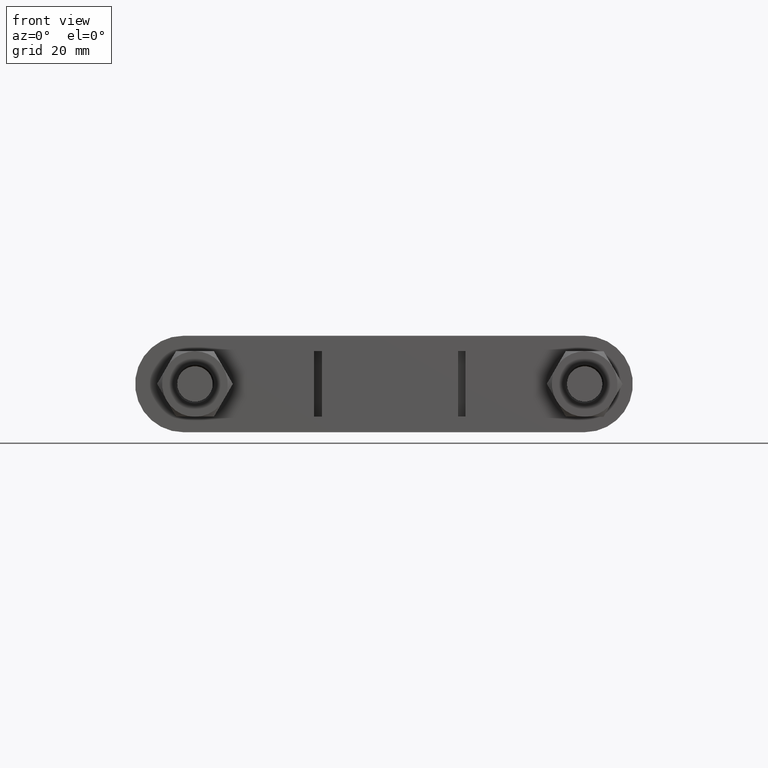
[diagram: clean part render]
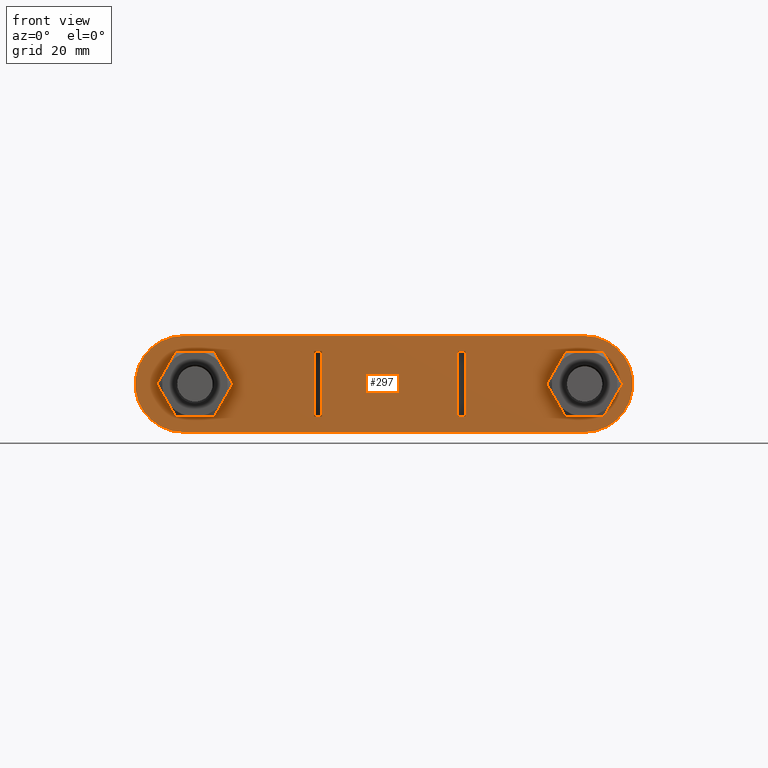
[diagram: same view with one face highlighted and labeled with its STEP entity id]
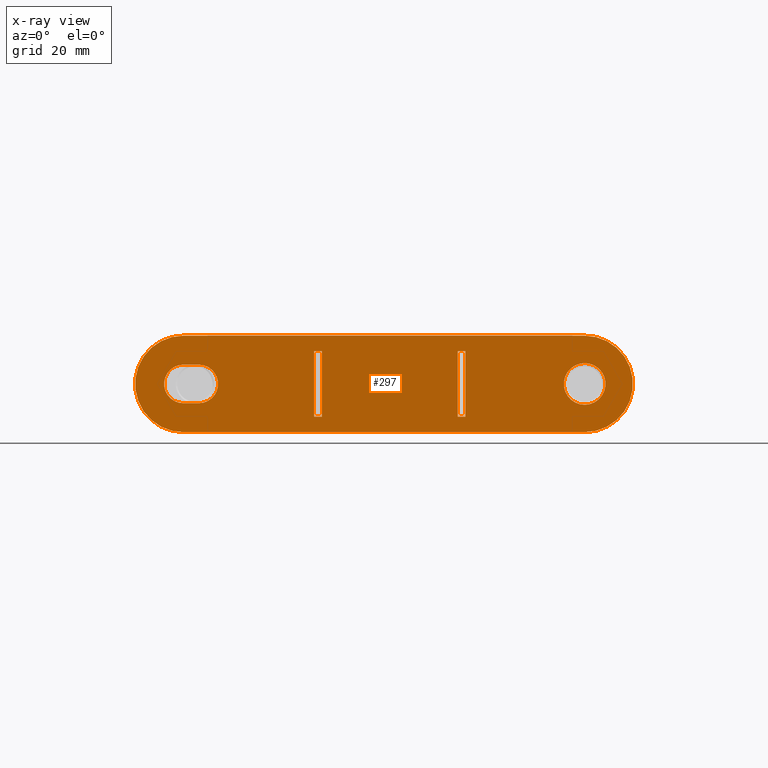
[diagram: x-ray of the same camera — body ghosted, the highlighted face saturated]
A machine part, front view. The second image highlights one B-rep face of the part: STEP entity #297.
The next image is the same camera in x-ray: the body ghosted, the highlighted face saturated — about 0% of this face is hidden behind the body in this view.
In plain terms, the highlighted planar face has unit normal (-0, 1, -0).
Its self-contained STEP definition (entity closure, byte-faithful):
#297 = ADVANCED_FACE( '', ( #449, #450, #451, #452, #453 ), #454, .F. );
#449 = FACE_OUTER_BOUND( '', #1516, .T. );
#450 = FACE_BOUND( '', #1517, .T. );
#451 = FACE_BOUND( '', #1518, .T. );
#452 = FACE_BOUND( '', #1519, .T. );
#453 = FACE_BOUND( '', #1520, .T. );
#454 = PLANE( '', #1521 );
#1516 = EDGE_LOOP( '', ( #1890, #1891, #1892, #1893 ) );
#1517 = EDGE_LOOP( '', ( #1894, #1895, #1896, #1897 ) );
#1518 = EDGE_LOOP( '', ( #1898 ) );
#1519 = EDGE_LOOP( '', ( #1899, #1900, #1901, #1902 ) );
#1520 = EDGE_LOOP( '', ( #1903, #1904, #1905, #1906 ) );
#1521 = AXIS2_PLACEMENT_3D( '', #1907, #1908, #1909 );
#1890 = ORIENTED_EDGE( '', *, *, #2553, .F. );
#1891 = ORIENTED_EDGE( '', *, *, #2554, .F. );
#1892 = ORIENTED_EDGE( '', *, *, #2555, .F. );
#1893 = ORIENTED_EDGE( '', *, *, #2556, .F. );
#1894 = ORIENTED_EDGE( '', *, *, #2557, .F. );
#1895 = ORIENTED_EDGE( '', *, *, #2558, .T. );
#1896 = ORIENTED_EDGE( '', *, *, #2559, .T. );
#1897 = ORIENTED_EDGE( '', *, *, #2560, .F. );
#1898 = ORIENTED_EDGE( '', *, *, #2561, .T. );
#1899 = ORIENTED_EDGE( '', *, *, #2562, .F. );
#1900 = ORIENTED_EDGE( '', *, *, #2563, .F. );
#1901 = ORIENTED_EDGE( '', *, *, #2564, .F. );
#1902 = ORIENTED_EDGE( '', *, *, #2565, .F. );
#1903 = ORIENTED_EDGE( '', *, *, #2566, .T. );
#1904 = ORIENTED_EDGE( '', *, *, #2567, .T. );
#1905 = ORIENTED_EDGE( '', *, *, #2568, .F. );
#1906 = ORIENTED_EDGE( '', *, *, #2569, .F. );
#1907 = CARTESIAN_POINT( '', ( -53.5000000000000, 35.2999999999975, 3.14292695115396E-009 ) );
#1908 = DIRECTION( '', ( -1.71347816196159E-040, 1.00000000000000, -6.03659968900116E-014 ) );
#1909 = DIRECTION( '', ( 1.00000000000000, 2.03915764624954E-056, -2.83848234144727E-027 ) );
#2553 = EDGE_CURVE( '', #2817, #2818, #2819, .T. );
#2554 = EDGE_CURVE( '', #2820, #2817, #2821, .T. );
#2555 = EDGE_CURVE( '', #2822, #2820, #2823, .T. );
#2556 = EDGE_CURVE( '', #2818, #2822, #2824, .T. );
#2557 = EDGE_CURVE( '', #2825, #2826, #2827, .T. );
#2558 = EDGE_CURVE( '', #2825, #2828, #2829, .T. );
#2559 = EDGE_CURVE( '', #2828, #2830, #2831, .T. );
#2560 = EDGE_CURVE( '', #2826, #2830, #2832, .T. );
#2561 = EDGE_CURVE( '', #2833, #2833, #2834, .T. );
#2562 = EDGE_CURVE( '', #2835, #2836, #2837, .T. );
#2563 = EDGE_CURVE( '', #2838, #2835, #2839, .T. );
#2564 = EDGE_CURVE( '', #2840, #2838, #2841, .T. );
#2565 = EDGE_CURVE( '', #2836, #2840, #2842, .T. );
#2566 = EDGE_CURVE( '', #2843, #2844, #2845, .T. );
#2567 = EDGE_CURVE( '', #2844, #2846, #2847, .T. );
#2568 = EDGE_CURVE( '', #2848, #2846, #2849, .T. );
#2569 = EDGE_CURVE( '', #2843, #2848, #2850, .T. );
#2817 = VERTEX_POINT( '', #3459 );
#2818 = VERTEX_POINT( '', #3460 );
#2819 = CIRCLE( '', #3461, 12.5000000000000 );
#2820 = VERTEX_POINT( '', #3462 );
#2821 = LINE( '', #3463, #3464 );
#2822 = VERTEX_POINT( '', #3465 );
#2823 = CIRCLE( '', #3466, 12.5000000000000 );
#2824 = LINE( '', #3467, #3468 );
#2825 = VERTEX_POINT( '', #3469 );
#2826 = VERTEX_POINT( '', #3470 );
#2827 = LINE( '', #3471, #3472 );
#2828 = VERTEX_POINT( '', #3473 );
#2829 = LINE( '', #3474, #3475 );
#2830 = VERTEX_POINT( '', #3476 );
#2831 = LINE( '', #3477, #3478 );
#2832 = LINE( '', #3479, #3480 );
#2833 = VERTEX_POINT( '', #3481 );
#2834 = CIRCLE( '', #3482, 5.40000000000000 );
#2835 = VERTEX_POINT( '', #3483 );
#2836 = VERTEX_POINT( '', #3484 );
#2837 = CIRCLE( '', #3485, 5.00000000000000 );
#2838 = VERTEX_POINT( '', #3486 );
#2839 = LINE( '', #3487, #3488 );
#2840 = VERTEX_POINT( '', #3489 );
#2841 = CIRCLE( '', #3490, 5.00000000000000 );
#2842 = LINE( '', #3491, #3492 );
#2843 = VERTEX_POINT( '', #3493 );
#2844 = VERTEX_POINT( '', #3494 );
#2845 = LINE( '', #3495, #3496 );
#2846 = VERTEX_POINT( '', #3497 );
#2847 = LINE( '', #3498, #3499 );
#2848 = VERTEX_POINT( '', #3500 );
#2849 = LINE( '', #3501, #3502 );
#2850 = LINE( '', #3503, #3504 );
#3459 = CARTESIAN_POINT( '', ( -53.5000000007343, 35.2999999999968, -12.4999999968571 ) );
#3460 = CARTESIAN_POINT( '', ( -53.4999999996328, 35.2999999999983, 12.5000000031429 ) );
#3461 = AXIS2_PLACEMENT_3D( '', #4061, #4062, #4063 );
#3462 = CARTESIAN_POINT( '', ( 50.4999999992658, 35.2999999999968, -12.5000000029666 ) );
#3463 = CARTESIAN_POINT( '', ( 50.4999999992658, 35.2999999999968, -12.5000000029666 ) );
#3464 = VECTOR( '', #4064, 1000.00000000000 );
#3465 = CARTESIAN_POINT( '', ( 50.5000000003673, 35.2999999999983, 12.5000000000882 ) );
#3466 = AXIS2_PLACEMENT_3D( '', #4065, #4066, #4067 );
#3467 = CARTESIAN_POINT( '', ( -53.4999999992656, 35.2999999999983, 12.5000000031429 ) );
#3468 = VECTOR( '', #4068, 1000.00000000000 );
#3469 = CARTESIAN_POINT( '', ( -19.6000000004992, 35.2999999999970, -8.49999999884854 ) );
#3470 = CARTESIAN_POINT( '', ( -17.6000000004991, 35.2999999999970, -8.49999999884854 ) );
#3471 = CARTESIAN_POINT( '', ( -19.6000000004994, 35.2999999999970, -8.49999999884854 ) );
#3472 = VECTOR( '', #4069, 1000.00000000000 );
#3473 = CARTESIAN_POINT( '', ( -19.5999999995005, 35.2999999999980, 8.50000000115146 ) );
#3474 = CARTESIAN_POINT( '', ( -19.5999999999999, 35.2999999999975, 1.15147260452597E-009 ) );
#3475 = VECTOR( '', #4070, 1000.00000000000 );
#3476 = CARTESIAN_POINT( '', ( -17.5999999995004, 35.2999999999980, 8.50000000115146 ) );
#3477 = CARTESIAN_POINT( '', ( -53.5000000000000, 35.2999999999980, 8.50000000115146 ) );
#3478 = VECTOR( '', #4071, 1000.00000000000 );
#3479 = CARTESIAN_POINT( '', ( -17.6000000004991, 35.2999999999970, -8.49999999896603 ) );
#3480 = VECTOR( '', #4072, 1000.00000000000 );
#3481 = CARTESIAN_POINT( '', ( 50.5000000000001, 35.2999999999978, 5.39999999703343 ) );
#3482 = AXIS2_PLACEMENT_3D( '', #4073, #4074, #4075 );
#3483 = CARTESIAN_POINT( '', ( -53.4999999998531, 35.2999999999978, 5.00000000302542 ) );
#3484 = CARTESIAN_POINT( '', ( -53.5000000002937, 35.2999999999972, -4.99999999685708 ) );
#3485 = AXIS2_PLACEMENT_3D( '', #4076, #4077, #4078 );
#3486 = CARTESIAN_POINT( '', ( -49.4999999998531, 35.2999999999978, 5.00000000290793 ) );
#3487 = CARTESIAN_POINT( '', ( -49.4999999997063, 35.2999999999978, 5.00000000290793 ) );
#3488 = VECTOR( '', #4079, 1000.00000000000 );
#3489 = CARTESIAN_POINT( '', ( -49.5000000002937, 35.2999999999972, -4.99999999709206 ) );
#3490 = AXIS2_PLACEMENT_3D( '', #4080, #4081, #4082 );
#3491 = CARTESIAN_POINT( '', ( -53.5000000002938, 35.2999999999972, -4.99999999685708 ) );
#3492 = VECTOR( '', #4083, 1000.00000000000 );
#3493 = CARTESIAN_POINT( '', ( 19.5999999995012, 35.2999999999970, -8.50000000115160 ) );
#3494 = CARTESIAN_POINT( '', ( 17.5999999995013, 35.2999999999970, -8.50000000115160 ) );
#3495 = CARTESIAN_POINT( '', ( -53.5000000000000, 35.2999999999970, -8.50000000115160 ) );
#3496 = VECTOR( '', #4084, 1000.00000000000 );
#3497 = CARTESIAN_POINT( '', ( 17.6000000005000, 35.2999999999980, 8.49999999884891 ) );
#3498 = CARTESIAN_POINT( '', ( 17.6000000000006, 35.2999999999975, -1.03385412107255E-009 ) );
#3499 = VECTOR( '', #4085, 1000.00000000000 );
#3500 = CARTESIAN_POINT( '', ( 19.6000000004999, 35.2999999999980, 8.49999999884891 ) );
#3501 = CARTESIAN_POINT( '', ( 19.6000000004999, 35.2999999999980, 8.49999999884891 ) );
#3502 = VECTOR( '', #4086, 1000.00000000000 );
#3503 = CARTESIAN_POINT( '', ( 19.5999999995012, 35.2999999999970, -8.50000000115161 ) );
#3504 = VECTOR( '', #4087, 1000.00000000000 );
#4061 = CARTESIAN_POINT( '', ( -53.5000000000000, 35.2999999999975, 3.14292695115396E-009 ) );
#4062 = DIRECTION( '', ( 2.83848234144727E-027, 1.00000000000000, -6.03659968900116E-014 ) );
#4063 = DIRECTION( '', ( 0.000000000000000, 6.03659968900116E-014, 1.00000000000000 ) );
#4064 = DIRECTION( '', ( -1.00000000000000, 3.54904285531665E-024, 5.87450643685463E-011 ) );
#4065 = CARTESIAN_POINT( '', ( 50.5000000000001, 35.2999999999975, -2.96655627372791E-009 ) );
#4066 = DIRECTION( '', ( 2.83848234144727E-027, 1.00000000000000, -6.03659968900116E-014 ) );
#4067 = DIRECTION( '', ( 0.000000000000000, 6.03659968900116E-014, 1.00000000000000 ) );
#4068 = DIRECTION( '', ( 1.00000000000000, -2.83848234166134E-027, -3.54620457586579E-024 ) );
#4069 = DIRECTION( '', ( 1.00000000000000, -2.83848234166212E-027, -3.55925227485225E-024 ) );
#4070 = DIRECTION( '', ( 5.87449659772266E-011, 6.03659968900116E-014, 1.00000000000000 ) );
#4071 = DIRECTION( '', ( 1.00000000000000, -2.83848234166212E-027, -3.55925227485225E-024 ) );
#4072 = DIRECTION( '', ( 5.87449659772266E-011, 6.03659968900116E-014, 1.00000000000000 ) );
#4073 = CARTESIAN_POINT( '', ( 50.5000000000001, 35.2999999999975, -2.96656668206876E-009 ) );
#4074 = DIRECTION( '', ( 2.83848234144727E-027, 1.00000000000000, -6.03659968900116E-014 ) );
#4075 = DIRECTION( '', ( 0.000000000000000, 6.03659968900116E-014, 1.00000000000000 ) );
#4076 = CARTESIAN_POINT( '', ( -53.5000000000000, 35.2999999999975, 3.14291480808963E-009 ) );
#4077 = DIRECTION( '', ( -2.83848234144727E-027, -1.00000000000000, 6.03659968900116E-014 ) );
#4078 = DIRECTION( '', ( 0.000000000000000, 6.03659968900116E-014, 1.00000000000000 ) );
#4079 = DIRECTION( '', ( -1.00000000000000, 2.83848234166134E-027, 3.54620457586579E-024 ) );
#4080 = CARTESIAN_POINT( '', ( -49.4999999999999, 35.2999999999975, 2.90793455061544E-009 ) );
#4081 = DIRECTION( '', ( -2.83848234144727E-027, -1.00000000000000, 6.03659968900116E-014 ) );
#4082 = DIRECTION( '', ( 0.000000000000000, 6.03659968900116E-014, 1.00000000000000 ) );
#4083 = DIRECTION( '', ( 1.00000000000000, -3.54904285531665E-024, -5.87450643685463E-011 ) );
#4084 = DIRECTION( '', ( -1.00000000000000, 2.83848234166212E-027, 3.55925327694537E-024 ) );
#4085 = DIRECTION( '', ( 5.87451627598660E-011, 6.03659968900116E-014, 1.00000000000000 ) );
#4086 = DIRECTION( '', ( -1.00000000000000, 2.83848234166212E-027, 3.55925327694537E-024 ) );
#4087 = DIRECTION( '', ( 5.87451627598660E-011, 6.03659968900116E-014, 1.00000000000000 ) );